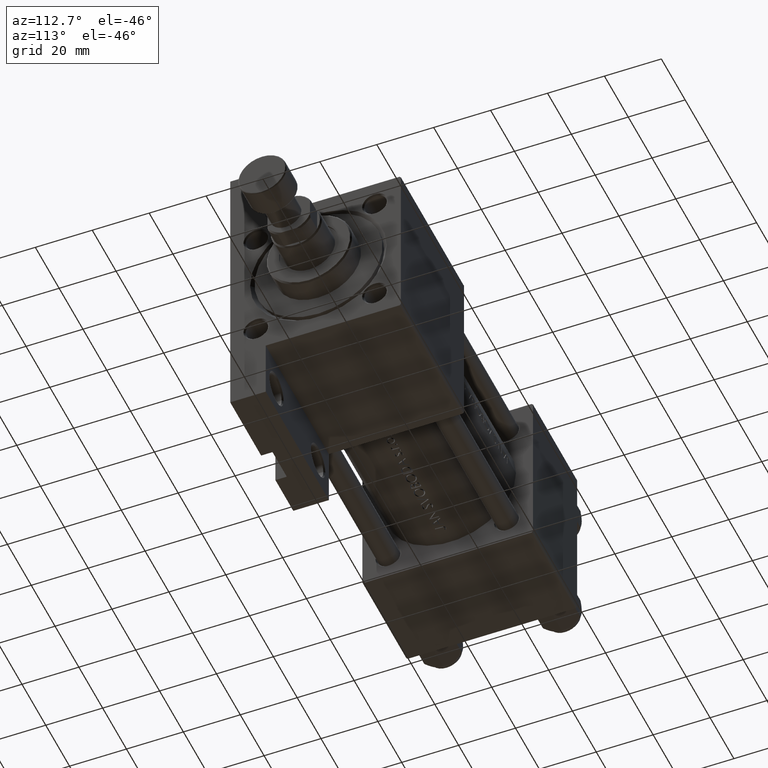
[diagram: clean part render]
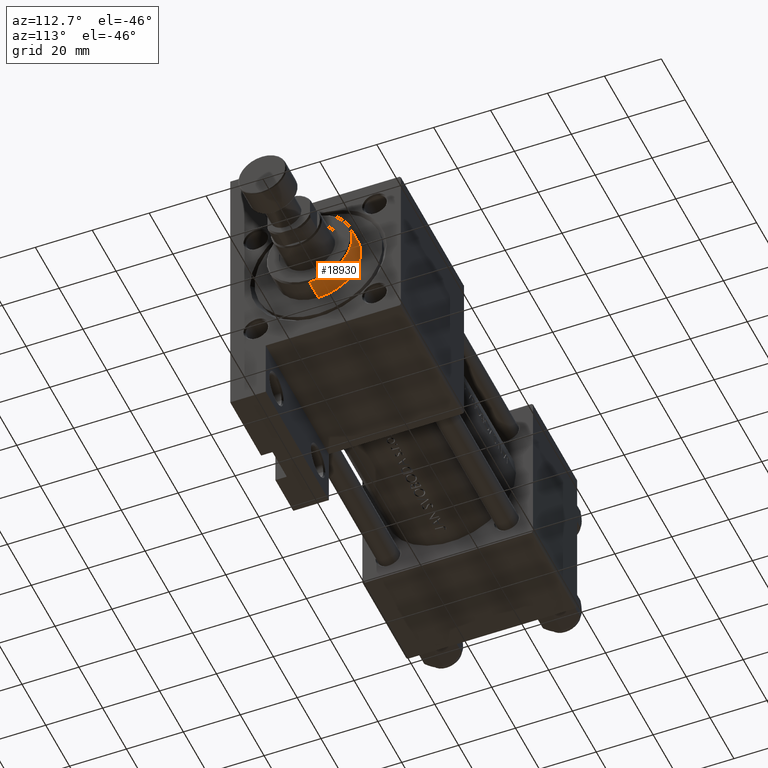
[diagram: same view with one face highlighted and labeled with its STEP entity id]
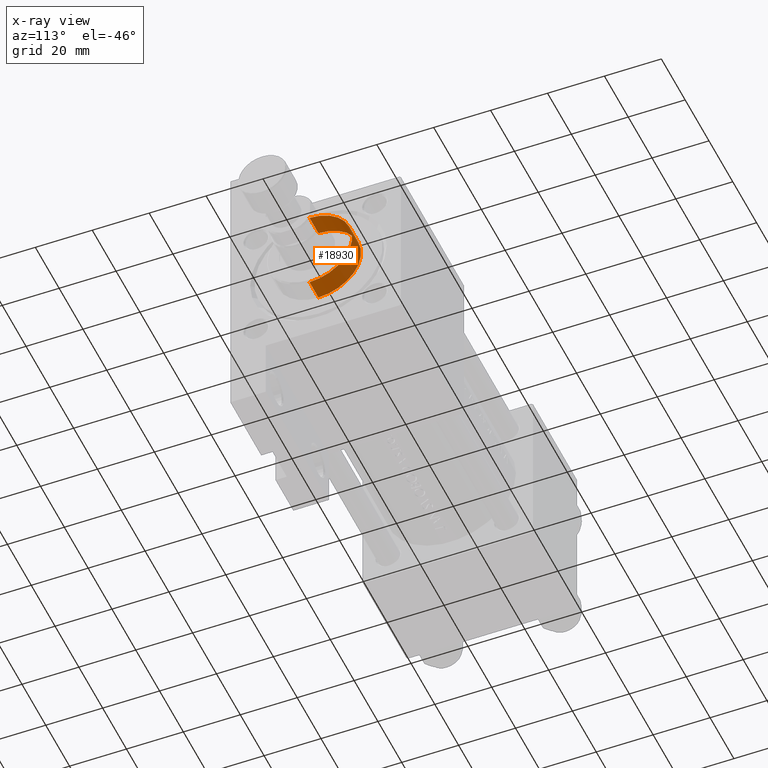
[diagram: x-ray of the same camera — body ghosted, the highlighted face saturated]
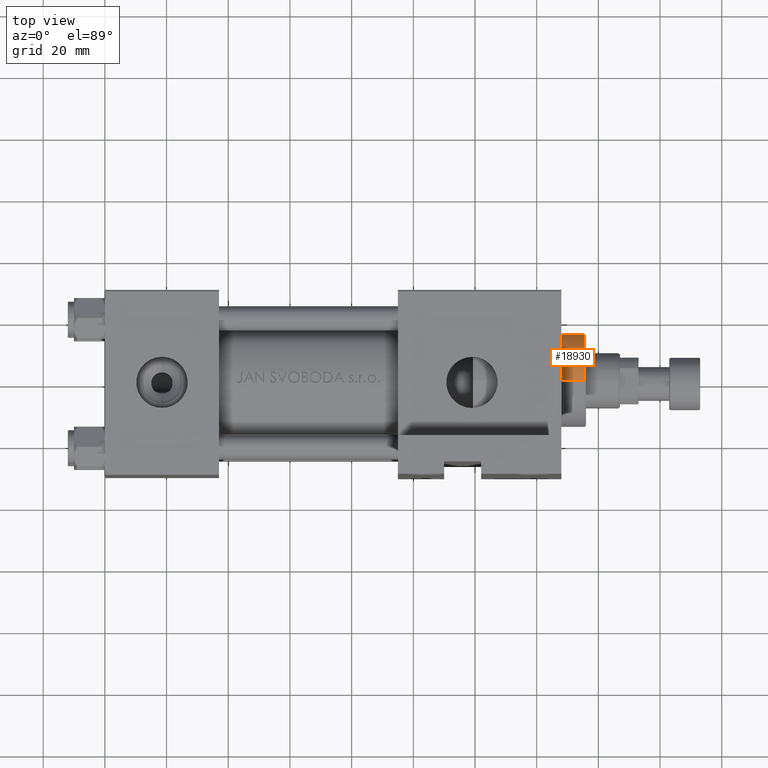
[diagram: same view with one face highlighted and labeled with its STEP entity id]
A machine part, auxiliary view. The second image highlights one B-rep face of the part: STEP entity #18930.
The next image is the same camera in x-ray: the body ghosted, the highlighted face saturated — about 1% of this face is hidden behind the body in this view.
A second angle (top view) of the same face is appended — the face is thin or edge-on in the first view.
In plain terms, the highlighted cylindrical surface (partial cylindrical patch) has radius 15 mm, axis along (-1, 0, 0).
Its self-contained STEP definition (entity closure, byte-faithful):
#1508 = CARTESIAN_POINT ( 'NONE',  ( -15.00000000000000000, 0.000000000000000000, 28.69999999999999929 ) ) ;
#2642 = EDGE_CURVE ( 'NONE', #14796, #34888, #22116, .T. ) ;
#2692 = EDGE_CURVE ( 'NONE', #34888, #11058, #31819, .T. ) ;
#4052 = VECTOR ( 'NONE', #17897, 1000.000000000000000 ) ;
#9706 = VERTEX_POINT ( 'NONE', #21679 ) ;
#10846 = AXIS2_PLACEMENT_3D ( 'NONE', #14504, #17778, #37340 ) ;
#11058 = VERTEX_POINT ( 'NONE', #26746 ) ;
#13652 = DIRECTION ( 'NONE',  ( -0.000000000000000000, -0.000000000000000000, -1.000000000000000000 ) ) ;
#14504 = CARTESIAN_POINT ( 'NONE',  ( 0.000000000000000000, 0.000000000000000000, 36.20000000000000284 ) ) ;
#14796 = VERTEX_POINT ( 'NONE', #30136 ) ;
#16520 = LINE ( 'NONE', #17010, #32778 ) ;
#17010 = CARTESIAN_POINT ( 'NONE',  ( 15.00000000000000000, 1.836970198721029589E-15, 36.69999999999999574 ) ) ;
#17406 = CYLINDRICAL_SURFACE ( 'NONE', #32271, 15.00000000000000000 ) ;
#17778 = DIRECTION ( 'NONE',  ( 0.000000000000000000, 0.000000000000000000, -1.000000000000000000 ) ) ;
#17897 = DIRECTION ( 'NONE',  ( -0.000000000000000000, -0.000000000000000000, -1.000000000000000000 ) ) ;
#18930 = ADVANCED_FACE ( 'NONE', ( #36257 ), #17406, .T. ) ;
#21679 = CARTESIAN_POINT ( 'NONE',  ( 15.00000000000000000, 1.836970198721029589E-15, 36.20000000000000284 ) ) ;
#22104 = ORIENTED_EDGE ( 'NONE', *, *, #30963, .F. ) ;
#22116 = LINE ( 'NONE', #48889, #4052 ) ;
#25613 = ORIENTED_EDGE ( 'NONE', *, *, #41647, .T. ) ;
#26746 = CARTESIAN_POINT ( 'NONE',  ( 15.00000000000000000, 1.836970198721029589E-15, 28.69999999999999929 ) ) ;
#28805 = DIRECTION ( 'NONE',  ( -1.000000000000000000, 0.000000000000000000, 0.000000000000000000 ) ) ;
#30136 = CARTESIAN_POINT ( 'NONE',  ( -15.00000000000000000, 0.000000000000000000, 36.20000000000000284 ) ) ;
#30963 = EDGE_CURVE ( 'NONE', #9706, #11058, #16520, .T. ) ;
#31819 = CIRCLE ( 'NONE', #38951, 15.00000000000000000 ) ;
#32271 = AXIS2_PLACEMENT_3D ( 'NONE', #47662, #13652, #28805 ) ;
#32778 = VECTOR ( 'NONE', #46788, 1000.000000000000000 ) ;
#34888 = VERTEX_POINT ( 'NONE', #1508 ) ;
#36257 = FACE_OUTER_BOUND ( 'NONE', #40679, .T. ) ;
#37340 = DIRECTION ( 'NONE',  ( 1.000000000000000000, 0.000000000000000000, 0.000000000000000000 ) ) ;
#38196 = DIRECTION ( 'NONE',  ( 0.000000000000000000, 0.000000000000000000, 1.000000000000000000 ) ) ;
#38694 = DIRECTION ( 'NONE',  ( 1.000000000000000000, 0.000000000000000000, 0.000000000000000000 ) ) ;
#38951 = AXIS2_PLACEMENT_3D ( 'NONE', #46145, #38196, #38694 ) ;
#39505 = ORIENTED_EDGE ( 'NONE', *, *, #2692, .T. ) ;
#40679 = EDGE_LOOP ( 'NONE', ( #22104, #25613, #44452, #39505 ) ) ;
#41647 = EDGE_CURVE ( 'NONE', #9706, #14796, #48878, .T. ) ;
#44452 = ORIENTED_EDGE ( 'NONE', *, *, #2642, .T. ) ;
#46145 = CARTESIAN_POINT ( 'NONE',  ( 0.000000000000000000, 0.000000000000000000, 28.69999999999999929 ) ) ;
#46788 = DIRECTION ( 'NONE',  ( -0.000000000000000000, -0.000000000000000000, -1.000000000000000000 ) ) ;
#47662 = CARTESIAN_POINT ( 'NONE',  ( 0.000000000000000000, 0.000000000000000000, 36.69999999999999574 ) ) ;
#48878 = CIRCLE ( 'NONE', #10846, 15.00000000000000000 ) ;
#48889 = CARTESIAN_POINT ( 'NONE',  ( -15.00000000000000000, 0.000000000000000000, 36.69999999999999574 ) ) ;